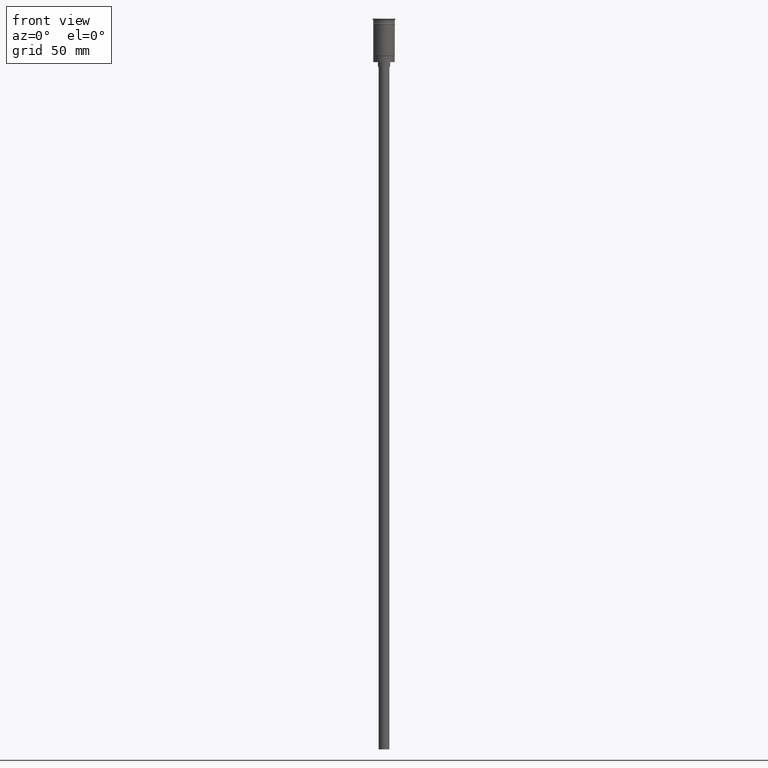
[diagram: clean part render]
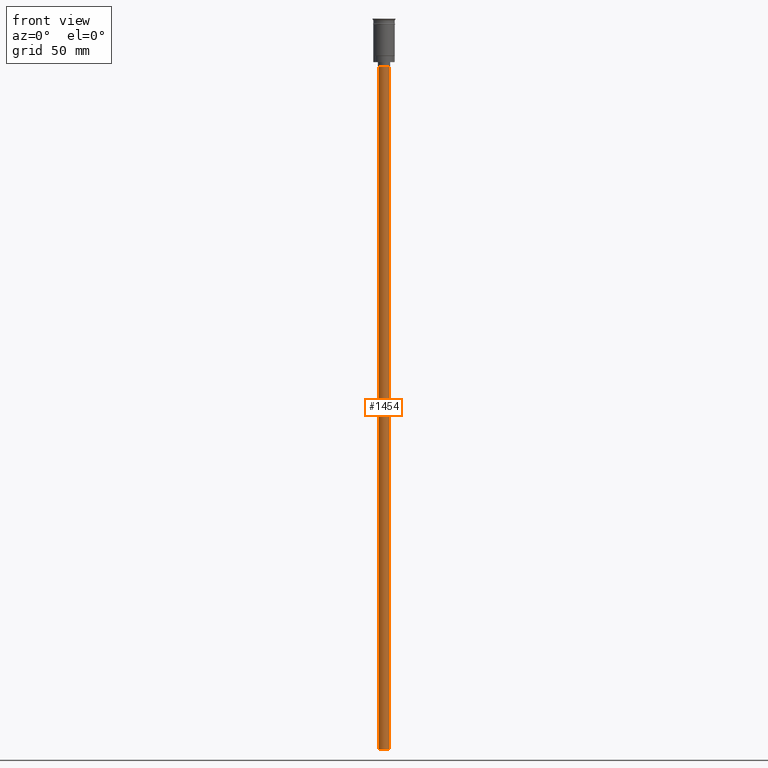
[diagram: same view with one face highlighted and labeled with its STEP entity id]
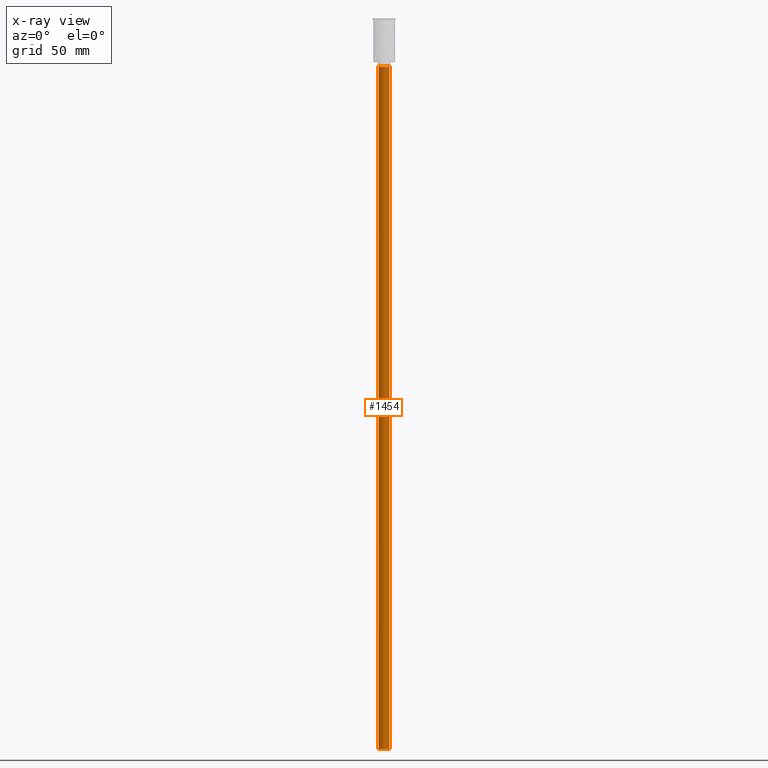
[diagram: x-ray of the same camera — body ghosted, the highlighted face saturated]
A machine part, front view. The second image highlights one B-rep face of the part: STEP entity #1454.
The next image is the same camera in x-ray: the body ghosted, the highlighted face saturated — about 0% of this face is hidden behind the body in this view.
In plain terms, the highlighted cylindrical surface (edge-blend (fillet) strip) has radius 3.5 mm, axis along (-0, -0, 1).
Its self-contained STEP definition (entity closure, byte-faithful):
#7 = LINE ( 'NONE', #1358, #1218 ) ;
#21 = CARTESIAN_POINT ( 'NONE',  ( -3.500000000000000444, 4.286263797015737088E-16, -31.50000000000000000 ) ) ;
#57 = VERTEX_POINT ( 'NONE', #755 ) ;
#59 = EDGE_CURVE ( 'NONE', #798, #1407, #7, .T. ) ;
#73 = CYLINDRICAL_SURFACE ( 'NONE', #1368, 3.500000000000000444 ) ;
#117 = CIRCLE ( 'NONE', #605, 3.500000000000000444 ) ;
#256 = VECTOR ( 'NONE', #268, 1000.000000000000000 ) ;
#268 = DIRECTION ( 'NONE',  ( -0.000000000000000000, -0.000000000000000000, 1.000000000000000000 ) ) ;
#316 = CARTESIAN_POINT ( 'NONE',  ( 3.500000000000000444, 0.000000000000000000, -31.50000000000000000 ) ) ;
#320 = ORIENTED_EDGE ( 'NONE', *, *, #59, .T. ) ;
#321 = EDGE_LOOP ( 'NONE', ( #1033, #965, #320, #543 ) ) ;
#377 = DIRECTION ( 'NONE',  ( -1.000000000000000000, 0.000000000000000000, 0.000000000000000000 ) ) ;
#415 = VERTEX_POINT ( 'NONE', #21 ) ;
#467 = EDGE_CURVE ( 'NONE', #1407, #415, #117, .T. ) ;
#543 = ORIENTED_EDGE ( 'NONE', *, *, #467, .T. ) ;
#564 = CARTESIAN_POINT ( 'NONE',  ( 0.000000000000000000, 0.000000000000000000, -478.5000000000000568 ) ) ;
#598 = DIRECTION ( 'NONE',  ( -1.000000000000000000, 0.000000000000000000, 0.000000000000000000 ) ) ;
#605 = AXIS2_PLACEMENT_3D ( 'NONE', #1494, #1386, #377 ) ;
#685 = DIRECTION ( 'NONE',  ( -0.000000000000000000, -0.000000000000000000, 1.000000000000000000 ) ) ;
#705 = CARTESIAN_POINT ( 'NONE',  ( 0.000000000000000000, 0.000000000000000000, -478.5000000000000568 ) ) ;
#755 = CARTESIAN_POINT ( 'NONE',  ( -3.500000000000000444, 4.286263797015737088E-16, -478.5000000000000568 ) ) ;
#798 = VERTEX_POINT ( 'NONE', #947 ) ;
#932 = FACE_OUTER_BOUND ( 'NONE', #321, .T. ) ;
#947 = CARTESIAN_POINT ( 'NONE',  ( 3.500000000000000444, 0.000000000000000000, -478.5000000000000568 ) ) ;
#965 = ORIENTED_EDGE ( 'NONE', *, *, #1071, .F. ) ;
#1001 = DIRECTION ( 'NONE',  ( -0.000000000000000000, -0.000000000000000000, 1.000000000000000000 ) ) ;
#1033 = ORIENTED_EDGE ( 'NONE', *, *, #1222, .F. ) ;
#1060 = DIRECTION ( 'NONE',  ( 1.000000000000000000, 0.000000000000000000, 0.000000000000000000 ) ) ;
#1071 = EDGE_CURVE ( 'NONE', #798, #57, #1228, .T. ) ;
#1218 = VECTOR ( 'NONE', #1001, 1000.000000000000000 ) ;
#1222 = EDGE_CURVE ( 'NONE', #57, #415, #1589, .T. ) ;
#1228 = CIRCLE ( 'NONE', #1519, 3.500000000000000444 ) ;
#1339 = CARTESIAN_POINT ( 'NONE',  ( -3.500000000000000444, 4.286263797015737088E-16, -478.5000000000000568 ) ) ;
#1358 = CARTESIAN_POINT ( 'NONE',  ( 3.500000000000000444, 0.000000000000000000, -478.5000000000000568 ) ) ;
#1368 = AXIS2_PLACEMENT_3D ( 'NONE', #564, #685, #1060 ) ;
#1386 = DIRECTION ( 'NONE',  ( 0.000000000000000000, 0.000000000000000000, -1.000000000000000000 ) ) ;
#1407 = VERTEX_POINT ( 'NONE', #316 ) ;
#1454 = ADVANCED_FACE ( 'NONE', ( #932 ), #73, .T. ) ;
#1476 = DIRECTION ( 'NONE',  ( 0.000000000000000000, 0.000000000000000000, -1.000000000000000000 ) ) ;
#1494 = CARTESIAN_POINT ( 'NONE',  ( 0.000000000000000000, 0.000000000000000000, -31.50000000000000000 ) ) ;
#1519 = AXIS2_PLACEMENT_3D ( 'NONE', #705, #1476, #598 ) ;
#1589 = LINE ( 'NONE', #1339, #256 ) ;